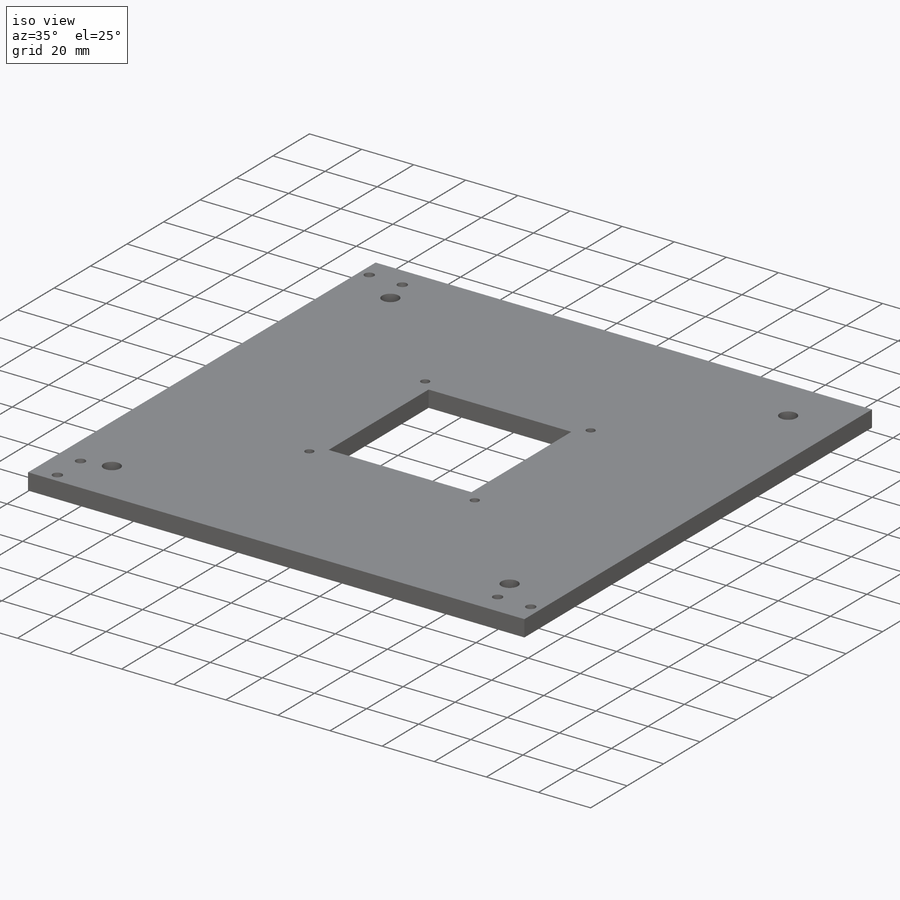
[diagram: iso view]
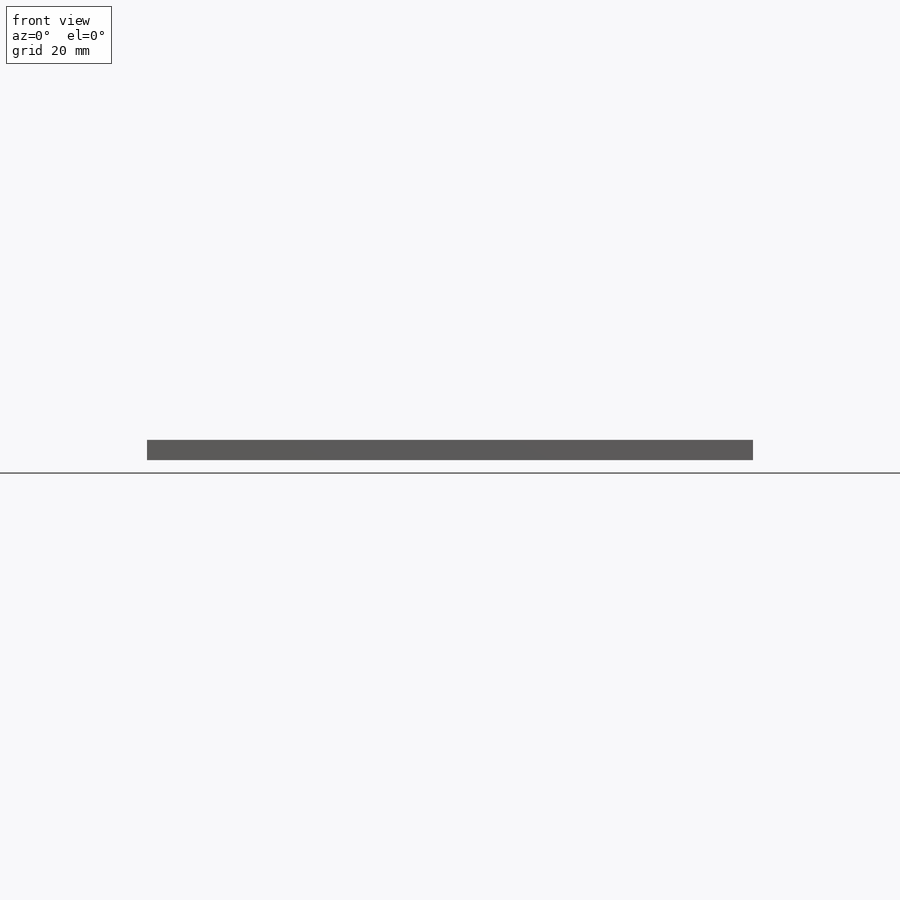
[diagram: front view]
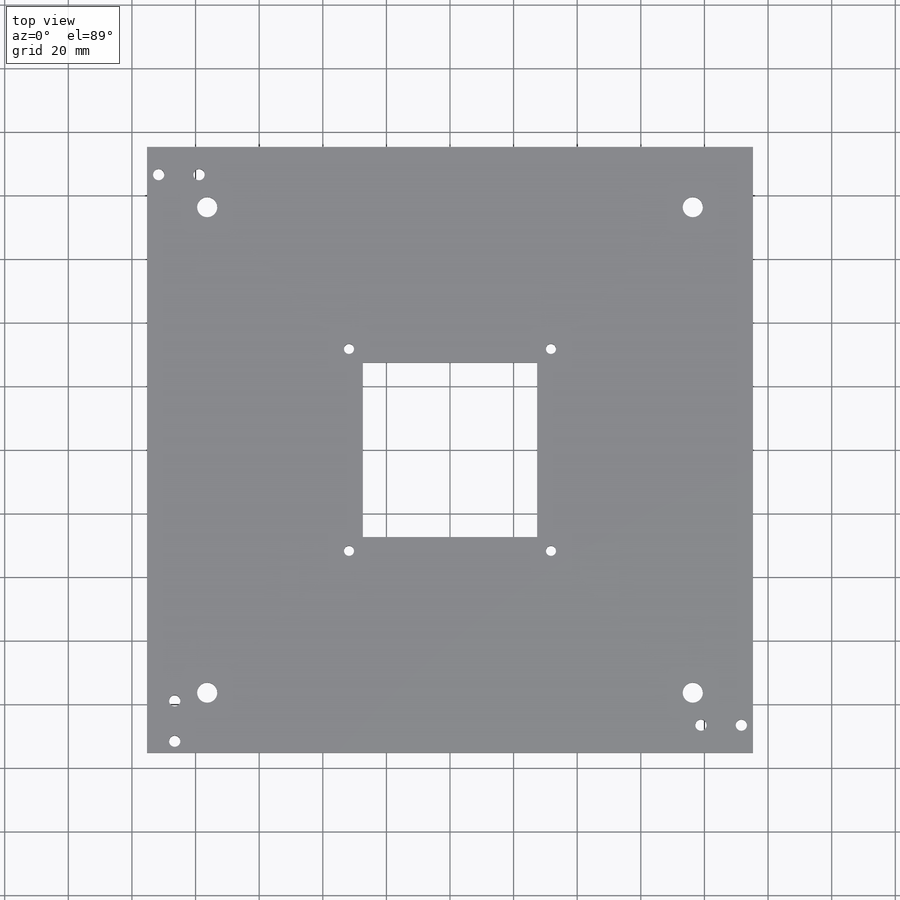
[diagram: top view]
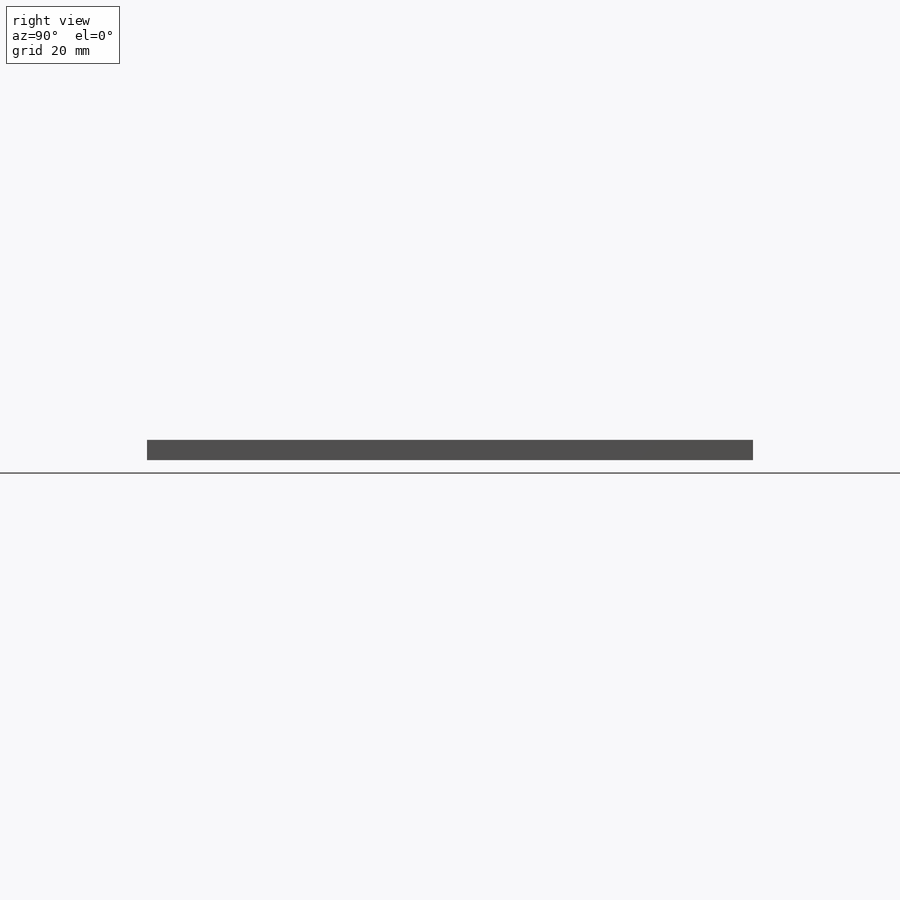
[diagram: right view]
SOLIDWORKS PART (.sldprt)
format: sldprt  version: not decoded by parser v0  size: 251,392 bytes
history: native  units: mm
features: sketch x4, cut_extrude x3, material x1, extrude x1 (+13 scaffold rows collapsed)
feature tree (22):
  scaffold x13  (default folders/planes/origin — collapsed)
  material  "Material <not specified>"
  sketch  "Sketch1"  dims[c1.D5=3.81mm c1.D10=0.07mm c1.D18=3.556mm c1.D24=~3.936717mm c1.D1=190.5mm c1.D2=190.5mm c1.D3=31.75mm c1.D4=31.75mm c2.D5=4.572mm c2.D6=4.572mm c2.D7=4.572mm c2.D8=4.572mm c2.D9=4.572mm c2.D10=4.572mm c2.D11=4.572mm c2.D12=4.572mm c3.D8=92.9mm c3.D9=85.25mm c3.D10=6.35mm c3.D12=6.35mm c3.D13=6.35mm c3.D14=92.9mm c3.D15=85.25mm c3.D16=6.35mm c3.D17=6.35mm c3.D18=6.35mm c4.D10=12.7mm c4.D12=6.35mm c4.D18=12.7mm c4.D19=85.25mm c4.D20=92.9mm c4.D21=6.35mm c4.D22=6.35mm c4.D23=12.7mm]
  extrude  "Boss-Extrude1"  Depth=6.35mm
  sketch  "Sketch2"  dims[D1=2.0mm]
  cut_extrude  "Cut-Extrude4"  Depth=10mm
  sketch  "Sketch4"
  cut_extrude  "Cut-Extrude5"  Depth=10mm
  sketch  "Sketch5"
  cut_extrude  "Cut-Extrude6"  [1 undecoded]
decode coverage: 5 of 8 modeling features carry decoded parameters
note: ~ marks probable driven/reference dimensions
note: 1 parameter value undecoded
note: suppression state not decoded; provenance and decode notes live in map.json
